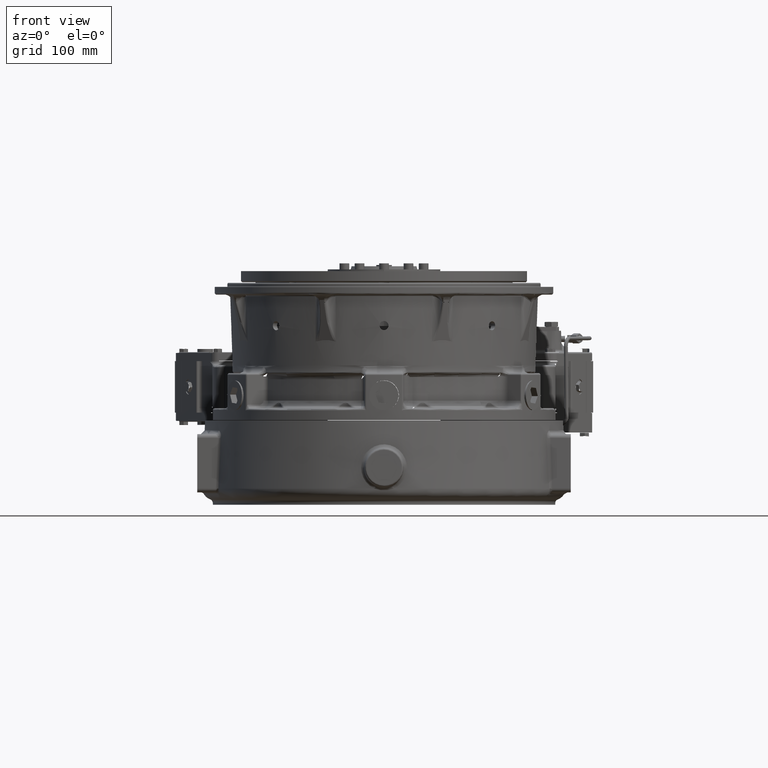
[diagram: clean part render]
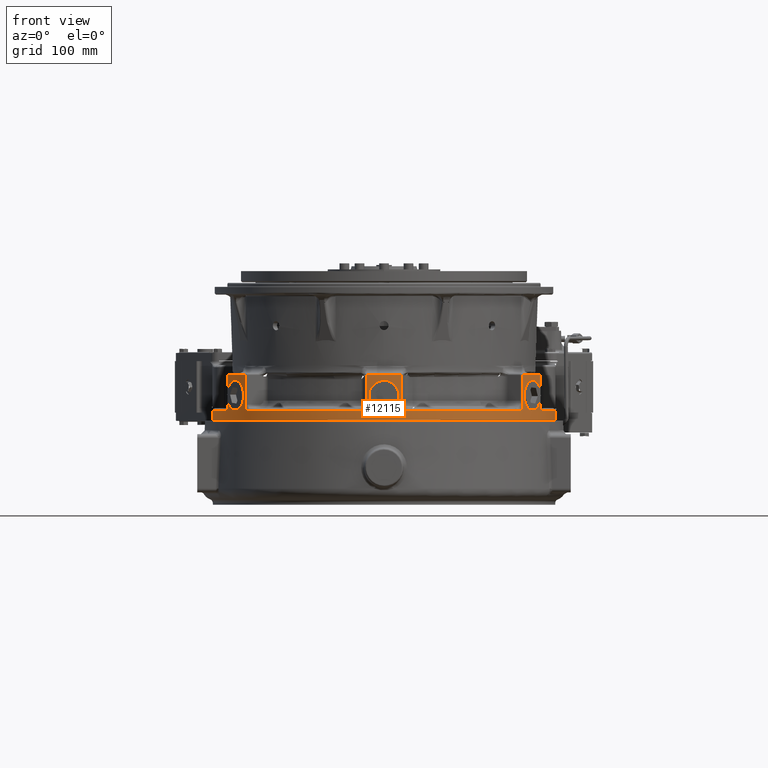
[diagram: same view with one face highlighted and labeled with its STEP entity id]
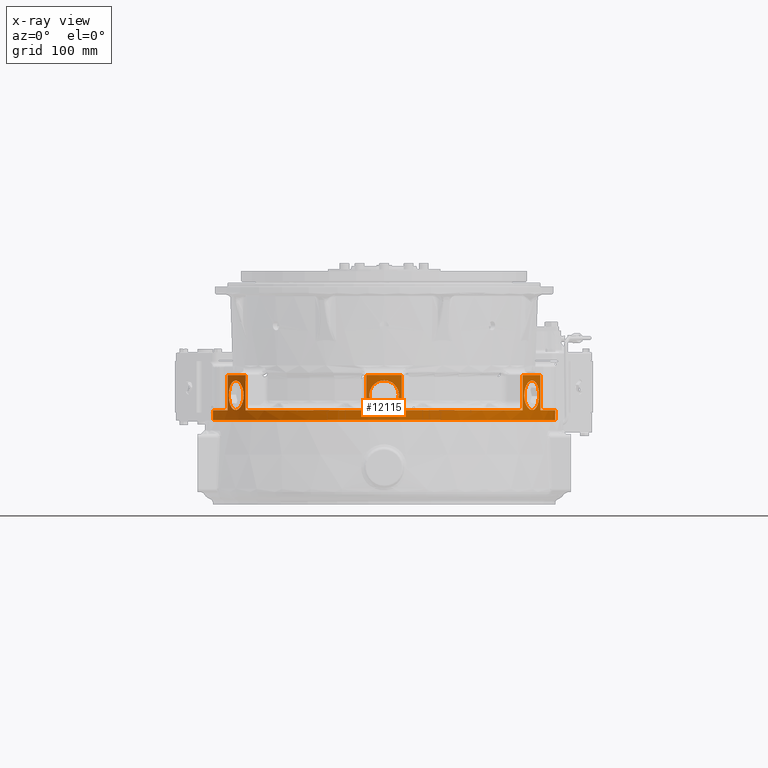
[diagram: x-ray of the same camera — body ghosted, the highlighted face saturated]
A machine part, front view. The second image highlights one B-rep face of the part: STEP entity #12115.
The next image is the same camera in x-ray: the body ghosted, the highlighted face saturated — about 0% of this face is hidden behind the body in this view.
In plain terms, the highlighted cylindrical surface (partial cylindrical patch) has radius 279.4 mm, axis along (0, 0, -1).
Its self-contained STEP definition (entity closure, byte-faithful):
#15 = CARTESIAN_POINT ( 'NONE',  ( -245.5327790735576300, -133.3347573887705600, -77.48144570945672200 ) ) ;
#646 = CARTESIAN_POINT ( 'NONE',  ( -237.9601481308272400, -146.4222298017960200, -77.87294827855303900 ) ) ;
#1266 = CARTESIAN_POINT ( 'NONE',  ( -230.3954609070318300, -158.0588422460843400, -90.63441590571139300 ) ) ;
#1894 = CARTESIAN_POINT ( 'NONE',  ( -230.5243944278738600, -157.8698529962755100, -110.9134873225762900 ) ) ;
#2246 = CARTESIAN_POINT ( 'NONE',  ( 279.3999999999994100, 3.421663156817697800E-014, -140.9700000000033200 ) ) ;
#2528 = CARTESIAN_POINT ( 'NONE',  ( -234.8173586108352700, -151.4166543265507700, -120.2546831429731100 ) ) ;
#3202 = VERTEX_POINT ( 'NONE', #78393 ) ;
#3901 = CARTESIAN_POINT ( 'NONE',  ( 21.79207183474108700, -278.5490914778080800, -89.99769574670209200 ) ) ;
#4524 = CARTESIAN_POINT ( 'NONE',  ( 23.84450928787767800, -278.3806809522215000, -103.8487555702940000 ) ) ;
#5158 = CARTESIAN_POINT ( 'NONE',  ( 14.38904509516751400, -279.0299187951586600, -119.7025938018093300 ) ) ;
#5802 = CARTESIAN_POINT ( 'NONE',  ( -3.505459371263962300, -279.3823067516929100, -124.2560245371521300 ) ) ;
#5842 = ORIENTED_EDGE ( 'NONE', *, *, #129575, .T. ) ;
#6268 = LINE ( 'NONE', #122109, #152339 ) ;
#6426 = CARTESIAN_POINT ( 'NONE',  ( -17.31828655562306500, -278.8627564784817400, -117.1096844213686800 ) ) ;
#6488 = DIRECTION ( 'NONE',  ( -1.000000000000000000, 0.0000000000000000000, 0.0000000000000000000 ) ) ;
#6617 = EDGE_CURVE ( 'NONE', #70534, #132539, #24034, .T. ) ;
#7487 = VERTEX_POINT ( 'NONE', #52579 ) ;
#7502 = CARTESIAN_POINT ( 'NONE',  ( 229.7306100509573500, -159.0229574815855600, -109.1921525812041800 ) ) ;
#8107 = CARTESIAN_POINT ( 'NONE',  ( 229.5406869526235300, -159.2967374065086100, -92.93417505873922800 ) ) ;
#8378 = ORIENTED_EDGE ( 'NONE', *, *, #103463, .T. ) ;
#8649 = EDGE_CURVE ( 'NONE', #179691, #117556, #11455, .T. ) ;
#8719 = CARTESIAN_POINT ( 'NONE',  ( 234.0594127847475600, -152.5808570231123200, -81.51120010241392300 ) ) ;
#9383 = CARTESIAN_POINT ( 'NONE',  ( 242.1375046053097200, -139.4141429097914500, -76.41037705584820100 ) ) ;
#10010 = CARTESIAN_POINT ( 'NONE',  ( 250.1089842534954900, -124.5398549434506400, -84.00264976642087300 ) ) ;
#10493 = CARTESIAN_POINT ( 'NONE',  ( -23.98512254953231000, -278.3685955070897100, -102.7047739294652500 ) ) ;
#10907 = VERTEX_POINT ( 'NONE', #25170 ) ;
#10911 = ORIENTED_EDGE ( 'NONE', *, *, #23699, .T. ) ;
#11129 = CARTESIAN_POINT ( 'NONE',  ( -20.88490298410304600, -278.6184084553501100, -88.28407089525673300 ) ) ;
#11455 = CIRCLE ( 'NONE', #122856, 279.3999999999994100 ) ;
#11603 = CARTESIAN_POINT ( 'NONE',  ( 251.3980709984646800, -121.9177635799638600, -87.70538920081331500 ) ) ;
#11775 = CARTESIAN_POINT ( 'NONE',  ( -10.35352674527000100, -279.2119656356090300, -78.48315238211260700 ) ) ;
#11939 = CARTESIAN_POINT ( 'NONE',  ( 226.1496293018871300, -164.0753033415410300, -124.9680000000000500 ) ) ;
#12115 = ADVANCED_FACE ( 'NONE', ( #68497, #102722, #29678, #141507 ), #162046, .T. ) ;
#12236 = CARTESIAN_POINT ( 'NONE',  ( 252.9917464960895200, -118.5730284460204900, -99.67868068034378800 ) ) ;
#12400 = CARTESIAN_POINT ( 'NONE',  ( 8.107973234236034400, -279.2833485652183200, -77.59291150648441300 ) ) ;
#12566 = CARTESIAN_POINT ( 'NONE',  ( -244.0939781535042500, -135.9526048115153900, -124.3956169988603800 ) ) ;
#12882 = CARTESIAN_POINT ( 'NONE',  ( 250.8549538768632500, -123.0300686678008000, -115.1799979535630300 ) ) ;
#13211 = CARTESIAN_POINT ( 'NONE',  ( -249.9446301417939100, -124.8684231624305600, -118.1688383668384600 ) ) ;
#13504 = DIRECTION ( 'NONE',  ( -1.618630747420212500E-017, -1.508887532773326900E-018, 1.000000000000000000 ) ) ;
#13506 = ORIENTED_EDGE ( 'NONE', *, *, #34559, .T. ) ;
#13510 = CARTESIAN_POINT ( 'NONE',  ( 242.6622897124898900, -138.4918304736897900, -124.6653622267836400 ) ) ;
#13850 = CARTESIAN_POINT ( 'NONE',  ( -253.1730306135700900, -118.1854177775170200, -103.7041610679923700 ) ) ;
#14087 = CARTESIAN_POINT ( 'NONE',  ( -248.2184266498687200, -128.2652434272957300, -80.07792902923752400 ) ) ;
#14151 = CARTESIAN_POINT ( 'NONE',  ( 235.2352078857088600, -150.7620325088885000, -121.1559762249237300 ) ) ;
#14495 = CARTESIAN_POINT ( 'NONE',  ( -250.4389153974153700, -123.8791194570985400, -84.03739043089021300 ) ) ;
#14708 = CARTESIAN_POINT ( 'NONE',  ( -244.8024327114027900, -134.6726064550430000, -77.06466069149067300 ) ) ;
#15152 = CARTESIAN_POINT ( 'NONE',  ( -6.938893903907228400E-015, 1.387778780781445700E-014, -124.9680000000000700 ) ) ;
#15343 = CARTESIAN_POINT ( 'NONE',  ( -237.3759445937808700, -147.3674206180639600, -78.30395337580999600 ) ) ;
#15954 = CARTESIAN_POINT ( 'NONE',  ( -229.7875826532095700, -158.9404567160982500, -93.59101774945173700 ) ) ;
#16525 = DIRECTION ( 'NONE',  ( 1.618630747420212500E-017, 1.508887532773326900E-018, -1.000000000000000000 ) ) ;
#16585 = CARTESIAN_POINT ( 'NONE',  ( -230.8280412235919500, -157.4255650471100700, -111.9789775921658900 ) ) ;
#17695 = DIRECTION ( 'NONE',  ( 1.618630747420212500E-017, 1.508887532773326900E-018, -1.000000000000000000 ) ) ;
#17886 = LINE ( 'NONE', #80387, #120585 ) ;
#18581 = CARTESIAN_POINT ( 'NONE',  ( 22.69416561695000600, -278.4769628110551000, -92.17430543594113600 ) ) ;
#18686 = B_SPLINE_CURVE_WITH_KNOTS ( 'NONE', 3,
 ( #186533, #99047, #11603, #113661, #26292, #128359, #41006, #143084, #55631, #157732, #70356, #172458, #85027, #187143, #99688, #12236, #114307, #26914, #128992, #41644, #143703, #56260, #158383, #71016, #173073, #85653, #187773, #100314, #12882, #114927, #27565, #129636, #42261, #144338, #56886, #159023, #71641, #173727, #86279, #188410, #100954, #13510, #115545, #28215, #130273, #42891, #144953, #57525, #159646, #72266, #174353, #86912, #189020, #101573, #14151, #116179, #28835, #130882, #43526, #145591, #58149, #160284 ),
 .UNSPECIFIED., .F., .F.,
 ( 4, 2, 2, 2, 2, 2, 2, 2, 2, 2, 2, 2, 2, 2, 2, 2, 2, 2, 2, 2, 2, 2, 2, 2, 2, 2, 2, 2, 2, 2, 4 ),
 ( 0.07541933285033006200, 0.08013304115347552600, 0.08131146822926187100, 0.08248989530504821600, 0.08484674945662096200, 0.08720360360819369400, 0.08838203068398005300, 0.08956045775976642600, 0.09427416606291190400, 0.09663102021448466400, 0.09780944729027105100, 0.09898787436605743800, 0.1037015826692030000, 0.1060584368207757900, 0.1084152909723485900, 0.1131289992754942500, 0.1154858534270670800, 0.1178427075786399200, 0.1201995617302127600, 0.1225564158817855900, 0.1272701241849312500, 0.1296269783365041300, 0.1319838324880769900, 0.1366975407912228400, 0.1378759678670092600, 0.1390543949427956700, 0.1414112490943686100, 0.1437681032459415500, 0.1449465303217280000, 0.1461249573975144700, 0.1508386657006601200 ),
 .UNSPECIFIED. ) ;
#19197 = CARTESIAN_POINT ( 'NONE',  ( 23.64252653651388400, -278.3979128011204700, -105.0200187065648800 ) ) ;
#19816 = CARTESIAN_POINT ( 'NONE',  ( 12.43385594873453600, -279.1239766379175100, -121.0151102302860000 ) ) ;
#20432 = CARTESIAN_POINT ( 'NONE',  ( -6.601989198480827000, -279.3230026600430200, -123.5503210205656800 ) ) ;
#21173 = CARTESIAN_POINT ( 'NONE',  ( -6.938893903907228400E-015, 1.387778780781445700E-014, -124.9680000000000700 ) ) ;
#21382 = EDGE_LOOP ( 'NONE', ( #95678, #97405 ) ) ;
#22147 = CARTESIAN_POINT ( 'NONE',  ( 229.1758094541187300, -159.8218562435650400, -106.1736577320754400 ) ) ;
#22579 = CARTESIAN_POINT ( 'NONE',  ( -6.938893903907228400E-015, 1.387778780781445700E-014, -67.47510000000008300 ) ) ;
#22601 = CIRCLE ( 'NONE', #168607, 279.3999999999994100 ) ;
#22789 = CARTESIAN_POINT ( 'NONE',  ( 229.7718089219417300, -158.9631977321125500, -91.81514972920635400 ) ) ;
#23447 = CARTESIAN_POINT ( 'NONE',  ( 234.9392555079498400, -151.2217397669838600, -80.36958108272433800 ) ) ;
#23699 = EDGE_CURVE ( 'NONE', #107349, #154305, #172107, .T. ) ;
#24034 = CIRCLE ( 'NONE', #119932, 279.3999999999994100 ) ;
#24074 = CARTESIAN_POINT ( 'NONE',  ( 243.6973677079035700, -136.6621786109416800, -76.74640612011960200 ) ) ;
#24706 = CARTESIAN_POINT ( 'NONE',  ( 250.5683438563238800, -123.6117512904769700, -85.19168479574116800 ) ) ;
#25170 = CARTESIAN_POINT ( 'NONE',  ( 226.1496293018871900, -164.0753033415410900, -67.47510000000008300 ) ) ;
#25193 = CARTESIAN_POINT ( 'NONE',  ( -24.10839233429018000, -278.3579450676741700, -100.7260249786557300 ) ) ;
#25837 = CARTESIAN_POINT ( 'NONE',  ( -20.26705025844633200, -278.6640460778052700, -87.26868454427217600 ) ) ;
#26292 = CARTESIAN_POINT ( 'NONE',  ( 251.8865630868199900, -120.9030556742486600, -89.80378304362855600 ) ) ;
#26467 = CARTESIAN_POINT ( 'NONE',  ( -7.394879607663257900, -279.3031615498327900, -77.35043580180459300 ) ) ;
#26739 = ORIENTED_EDGE ( 'NONE', *, *, #65472, .T. ) ;
#26866 = DIRECTION ( 'NONE',  ( 1.618630747420212500E-017, 1.508887532773326900E-018, -1.000000000000000000 ) ) ;
#26914 = CARTESIAN_POINT ( 'NONE',  ( 252.9015803121880600, -118.7651295806316900, -103.6011820914229800 ) ) ;
#27012 = VERTEX_POINT ( 'NONE', #153989 ) ;
#27086 = CARTESIAN_POINT ( 'NONE',  ( 11.03252667865529400, -279.1858702353269500, -78.81880859989598800 ) ) ;
#27246 = CARTESIAN_POINT ( 'NONE',  ( -245.5777924230203000, -133.2600990371671500, -123.7103070275757800 ) ) ;
#27565 = CARTESIAN_POINT ( 'NONE',  ( 249.7044250248833900, -125.3537418403764600, -118.1309109282102700 ) ) ;
#27918 = CARTESIAN_POINT ( 'NONE',  ( -250.3230992678662700, -124.1079335623024900, -117.3303449344014400 ) ) ;
#28215 = CARTESIAN_POINT ( 'NONE',  ( 241.4716521554367700, -140.5575865895731900, -124.7180103579122800 ) ) ;
#28323 = VECTOR ( 'NONE', #83847, 1000.000000000000000 ) ;
#28532 = CARTESIAN_POINT ( 'NONE',  ( -253.2539472272008500, -118.0118670454983100, -101.3286904777078400 ) ) ;
#28835 = CARTESIAN_POINT ( 'NONE',  ( 234.5240705229295800, -151.8648172331907900, -120.2779517555801900 ) ) ;
#29169 = CARTESIAN_POINT ( 'NONE',  ( -249.6629419584487000, -125.4307253052556500, -82.42877200948710500 ) ) ;
#29387 = CARTESIAN_POINT ( 'NONE',  ( -243.2928982666079500, -137.3810242322598200, -76.55545755865377100 ) ) ;
#29678 = FACE_BOUND ( 'NONE', #21382, .T. ) ;
#29841 = DIRECTION ( 'NONE',  ( -1.000000000000000000, 0.0000000000000000000, 0.0000000000000000000 ) ) ;
#30021 = CARTESIAN_POINT ( 'NONE',  ( -236.2337479433175000, -149.1979770339548000, -79.27618865148535600 ) ) ;
#30096 = EDGE_CURVE ( 'NONE', #7487, #170404, #182105, .T. ) ;
#30655 = CARTESIAN_POINT ( 'NONE',  ( -229.4582596374649800, -159.4154431167383400, -95.90264274940207700 ) ) ;
#31119 = VECTOR ( 'NONE', #104795, 1000.000000000000000 ) ;
#31284 = CARTESIAN_POINT ( 'NONE',  ( -231.2690443685614000, -156.7773768054844900, -113.3513012795248000 ) ) ;
#31637 = DIRECTION ( 'NONE',  ( 1.618630747420212500E-017, 1.508887532773326900E-018, -1.000000000000000000 ) ) ;
#33309 = CARTESIAN_POINT ( 'NONE',  ( 23.27328346917639100, -278.4290325297373600, -94.05588237038527700 ) ) ;
#33909 = CARTESIAN_POINT ( 'NONE',  ( 22.75023087009208200, -278.4729439066557000, -108.4441486055155100 ) ) ;
#34558 = CARTESIAN_POINT ( 'NONE',  ( 10.34860980863561200, -279.2091696787495000, -122.1362506501640900 ) ) ;
#34559 = EDGE_CURVE ( 'NONE', #3202, #139759, #161327, .T. ) ;
#34975 = EDGE_CURVE ( 'NONE', #139759, #102970, #37710, .T. ) ;
#35192 = CARTESIAN_POINT ( 'NONE',  ( -8.842502307913072500, -279.2609714736908600, -122.7906977020925300 ) ) ;
#35881 = DIRECTION ( 'NONE',  ( -1.000000000000000000, 0.0000000000000000000, 0.0000000000000000000 ) ) ;
#36267 = CARTESIAN_POINT ( 'NONE',  ( 231.9685912669810100, -155.7399520534534600, -115.9697473664077300 ) ) ;
#36843 = ORIENTED_EDGE ( 'NONE', *, *, #116099, .T. ) ;
#36895 = CARTESIAN_POINT ( 'NONE',  ( 228.8793917918963800, -160.2453920213788500, -102.6738244834521200 ) ) ;
#37321 = DIRECTION ( 'NONE',  ( 1.000000000000000000, 0.0000000000000000000, 0.0000000000000000000 ) ) ;
#37522 = CARTESIAN_POINT ( 'NONE',  ( 230.2164331861886500, -158.3189468222338100, -90.00676165852551900 ) ) ;
#37710 = CIRCLE ( 'NONE', #56591, 279.3999999999994100 ) ;
#38159 = CARTESIAN_POINT ( 'NONE',  ( 235.4866298009344500, -150.3679558432558800, -79.74317323421540500 ) ) ;
#38281 = EDGE_CURVE ( 'NONE', #154305, #125783, #183745, .T. ) ;
#38794 = CARTESIAN_POINT ( 'NONE',  ( 244.8188111307763100, -134.6427749682534300, -77.23494198960513300 ) ) ;
#39290 = CARTESIAN_POINT ( 'NONE',  ( -20.67653487422317900, -278.6342095497514600, -112.7496812853161900 ) ) ;
#39903 = CARTESIAN_POINT ( 'NONE',  ( -23.89260639810778400, -278.3767505475924500, -96.80324773420505800 ) ) ;
#40539 = CARTESIAN_POINT ( 'NONE',  ( -18.92205321071743600, -278.7599902622741900, -85.30321044871171000 ) ) ;
#41006 = CARTESIAN_POINT ( 'NONE',  ( 252.1051351534657700, -120.4466033363752000, -90.88142660045288300 ) ) ;
#41172 = CARTESIAN_POINT ( 'NONE',  ( -5.104382412842440400, -279.3544398570674000, -76.73436492104639200 ) ) ;
#41338 = CARTESIAN_POINT ( 'NONE',  ( -238.5774354588680200, -145.4157929411897200, -123.6958355174703900 ) ) ;
#41644 = CARTESIAN_POINT ( 'NONE',  ( 252.7576906386778700, -119.0710524375616000, -105.5526018063685400 ) ) ;
#41789 = CARTESIAN_POINT ( 'NONE',  ( 14.34796023452347100, -279.0321066027941600, -80.92686214021881600 ) ) ;
#41962 = CARTESIAN_POINT ( 'NONE',  ( -247.1282782496714400, -130.3537666723671300, -122.3797482969569800 ) ) ;
#42261 = CARTESIAN_POINT ( 'NONE',  ( 248.5837627646228000, -127.5574336933297000, -120.1322588774348200 ) ) ;
#42409 = CARTESIAN_POINT ( 'NONE',  ( -235.5459609522034700, -150.2746162167875100, -121.0944526693196900 ) ) ;
#42511 = CARTESIAN_POINT ( 'NONE',  ( -279.3999999999994100, 1.387778780781445700E-014, -124.9680000000000700 ) ) ;
#42600 = CARTESIAN_POINT ( 'NONE',  ( -251.3404639416571100, -122.0369608610374400, -114.6311064353277400 ) ) ;
#42891 = CARTESIAN_POINT ( 'NONE',  ( 239.8788515564557700, -143.2653282901739300, -124.4633564995971100 ) ) ;
#43228 = CARTESIAN_POINT ( 'NONE',  ( -253.2244274033939200, -118.0751976214395700, -98.18457220371374200 ) ) ;
#43526 = CARTESIAN_POINT ( 'NONE',  ( 234.0031635782576700, -152.6662199153730600, -119.5649191842973800 ) ) ;
#43863 = CARTESIAN_POINT ( 'NONE',  ( -249.2507122671092900, -126.2479390215457900, -81.66640936182169200 ) ) ;
#44075 = CARTESIAN_POINT ( 'NONE',  ( -242.5131109508585900, -138.7512470186607100, -76.46297664615298100 ) ) ;
#44711 = CARTESIAN_POINT ( 'NONE',  ( -234.4602845825898500, -151.9642957027797400, -81.44753241300895800 ) ) ;
#45322 = CARTESIAN_POINT ( 'NONE',  ( -229.1808791650314300, -159.8139148891742700, -99.81187799520067500 ) ) ;
#45708 = EDGE_CURVE ( 'NONE', #125783, #106263, #58756, .T. ) ;
#45943 = CARTESIAN_POINT ( 'NONE',  ( -232.0206158596240900, -155.6631102170494500, -115.2880546850552900 ) ) ;
#46486 = CARTESIAN_POINT ( 'NONE',  ( -226.1496293018858500, -164.0753033415429100, -124.9680000000000700 ) ) ;
#47761 = DIRECTION ( 'NONE',  ( 1.618630747420212500E-017, 1.508887532773326900E-018, -1.000000000000000000 ) ) ;
#47940 = CARTESIAN_POINT ( 'NONE',  ( 23.55367468920503200, -278.4054464968190800, -95.21116289567432000 ) ) ;
#48569 = CARTESIAN_POINT ( 'NONE',  ( 21.46021353986649400, -278.5748862899632700, -111.3368990408696000 ) ) ;
#49170 = CARTESIAN_POINT ( 'NONE',  ( 7.415417550427238600, -279.3054517585376900, -123.3437888145286400 ) ) ;
#49223 = VECTOR ( 'NONE', #13504, 1000.000000000000000 ) ;
#49502 = DIRECTION ( 'NONE',  ( 1.618630747420212500E-017, 1.508887532773326900E-018, -1.000000000000000000 ) ) ;
#49774 = CARTESIAN_POINT ( 'NONE',  ( -10.98907766400166600, -279.1846634533584400, -121.8197073481705200 ) ) ;
#51492 = CARTESIAN_POINT ( 'NONE',  ( 228.8369955015352800, -160.3059261161711500, -101.4887133558822100 ) ) ;
#52131 = CARTESIAN_POINT ( 'NONE',  ( 230.8584060646462900, -157.3815299186770500, -87.94143416305343000 ) ) ;
#52579 = CARTESIAN_POINT ( 'NONE',  ( -29.01856617647058600, -277.8889757026383900, -124.9680000000001000 ) ) ;
#52785 = CARTESIAN_POINT ( 'NONE',  ( 236.6006293478130000, -148.6150278804869900, -78.60847016654530300 ) ) ;
#53416 = CARTESIAN_POINT ( 'NONE',  ( 245.8946912154550000, -132.6676211936414800, -77.94612175750923200 ) ) ;
#53896 = CARTESIAN_POINT ( 'NONE',  ( -21.79323617902083000, -278.5490016104140500, -110.6600018290923400 ) ) ;
#54529 = CARTESIAN_POINT ( 'NONE',  ( -23.38252563623424500, -278.4198773109065400, -94.47707146732439300 ) ) ;
#55172 = CARTESIAN_POINT ( 'NONE',  ( -16.21467745263941000, -278.9296744624961100, -82.46160616033965600 ) ) ;
#55631 = CARTESIAN_POINT ( 'NONE',  ( 252.4181989092998300, -119.7892599981335000, -92.71264906861200900 ) ) ;
#55805 = CARTESIAN_POINT ( 'NONE',  ( -1.216412017898951300, -279.4018891039845600, -76.17806677709539500 ) ) ;
#55972 = CARTESIAN_POINT ( 'NONE',  ( -239.7729385657955600, -143.4360716739229800, -124.2719157839191000 ) ) ;
#56260 = CARTESIAN_POINT ( 'NONE',  ( 252.6404471739421900, -119.3196270664485000, -106.7129108481273900 ) ) ;
#56441 = CARTESIAN_POINT ( 'NONE',  ( 16.18989121136121100, -278.9312024918424400, -82.43869345551652800 ) ) ;
#56591 = AXIS2_PLACEMENT_3D ( 'NONE', #103964, #16525, #118536 ) ;
#56598 = CARTESIAN_POINT ( 'NONE',  ( -247.6231316221434600, -129.4112401658527200, -121.8407224097733300 ) ) ;
#56886 = CARTESIAN_POINT ( 'NONE',  ( 247.6749882270607400, -129.3133297740830300, -121.4228204823722600 ) ) ;
#57230 = CARTESIAN_POINT ( 'NONE',  ( -252.0464739925905600, -120.5697233446759500, -111.9343072799063100 ) ) ;
#57525 = CARTESIAN_POINT ( 'NONE',  ( 238.0917895331049600, -146.2080847081099400, -123.6003365643212700 ) ) ;
#57847 = CARTESIAN_POINT ( 'NONE',  ( -252.8276432255850400, -118.9229832618910900, -93.52023698507683500 ) ) ;
#58068 = VECTOR ( 'NONE', #31637, 1000.000000000000000 ) ;
#58149 = CARTESIAN_POINT ( 'NONE',  ( 232.5353649697806300, -154.8957647035017300, -117.1970879899909900 ) ) ;
#58502 = CARTESIAN_POINT ( 'NONE',  ( -248.5253828878321100, -127.6712228461800700, -80.49274582902053500 ) ) ;
#58729 = CARTESIAN_POINT ( 'NONE',  ( -241.9183992813306900, -139.7855694482553600, -76.45448467464878200 ) ) ;
#58756 = CIRCLE ( 'NONE', #79066, 279.3999999999994100 ) ;
#59126 = ORIENTED_EDGE ( 'NONE', *, *, #134730, .T. ) ;
#59340 = CARTESIAN_POINT ( 'NONE',  ( -233.4678945533881900, -153.4843831645026200, -82.99185626199553700 ) ) ;
#59858 = EDGE_CURVE ( 'NONE', #152586, #114069, #165038, .T. ) ;
#59977 = CARTESIAN_POINT ( 'NONE',  ( -229.2633572349275000, -159.6955979797190000, -102.9669310361670800 ) ) ;
#60607 = CARTESIAN_POINT ( 'NONE',  ( -232.7256848329670900, -154.6065437880779700, -116.7932505254131300 ) ) ;
#62008 = CARTESIAN_POINT ( 'NONE',  ( 19.38305275347201800, -278.7281817668800800, -85.90449420379536600 ) ) ;
#62639 = CARTESIAN_POINT ( 'NONE',  ( 23.99136672465009200, -278.3682025271322700, -97.55463228687955300 ) ) ;
#63262 = CARTESIAN_POINT ( 'NONE',  ( 20.27775683064060200, -278.6635469097077500, -113.3922657257807900 ) ) ;
#63904 = CARTESIAN_POINT ( 'NONE',  ( 3.581300869328123400, -279.3781211574498700, -124.2050925599016600 ) ) ;
#64540 = CARTESIAN_POINT ( 'NONE',  ( -12.36398401308777300, -279.1265045590428700, -121.0459555879829500 ) ) ;
#65197 = ORIENTED_EDGE ( 'NONE', *, *, #38281, .T. ) ;
#65472 = EDGE_CURVE ( 'NONE', #117556, #157443, #88128, .T. ) ;
#66223 = CARTESIAN_POINT ( 'NONE',  ( 228.8271912754344400, -160.3199193670421600, -99.89720028211371500 ) ) ;
#66849 = CARTESIAN_POINT ( 'NONE',  ( 231.3524437257255500, -156.6539562554428400, -86.62946707610765900 ) ) ;
#67221 = VECTOR ( 'NONE', #86127, 1000.000000000000000 ) ;
#67493 = CARTESIAN_POINT ( 'NONE',  ( 238.5523212013941600, -145.4569344215322800, -77.29790127946247900 ) ) ;
#68133 = CARTESIAN_POINT ( 'NONE',  ( 246.9270570938266800, -130.7359063850881900, -78.88413691030055500 ) ) ;
#68233 = EDGE_CURVE ( 'NONE', #102970, #132539, #6268, .T. ) ;
#68497 = FACE_OUTER_BOUND ( 'NONE', #134908, .T. ) ;
#68622 = CARTESIAN_POINT ( 'NONE',  ( -22.99319823822123300, -278.4528893484109600, -107.7259777028654600 ) ) ;
#69249 = CARTESIAN_POINT ( 'NONE',  ( -23.06584847526228900, -278.4462986923414300, -93.32985206408021400 ) ) ;
#69897 = CARTESIAN_POINT ( 'NONE',  ( -14.69114849770236700, -279.0136678614632000, -81.19818013513453500 ) ) ;
#70055 = CARTESIAN_POINT ( 'NONE',  ( -236.2745632935718400, -149.1325781070243000, -121.9342221956663200 ) ) ;
#70356 = CARTESIAN_POINT ( 'NONE',  ( 252.7004908468810000, -119.1924789557208000, -94.97516175373992600 ) ) ;
#70428 = AXIS2_PLACEMENT_3D ( 'NONE', #105147, #17695, #119759 ) ;
#70522 = CARTESIAN_POINT ( 'NONE',  ( 1.963385825927087300, -279.3941978447543900, -76.26728348022541600 ) ) ;
#70534 = VERTEX_POINT ( 'NONE', #116330 ) ;
#70585 = ORIENTED_EDGE ( 'NONE', *, *, #187894, .T. ) ;
#70697 = CARTESIAN_POINT ( 'NONE',  ( -241.7589513806162500, -140.0694579168870700, -124.7539112427015800 ) ) ;
#71016 = CARTESIAN_POINT ( 'NONE',  ( 252.3548282940642500, -119.9233266067840300, -108.9841048939220900 ) ) ;
#71056 = B_SPLINE_CURVE_WITH_KNOTS ( 'NONE', 3,
 ( #119628, #170017, #126608, #39290, #141314, #53896, #155978, #68622, #170670, #83288, #185437, #97920, #10493, #112561, #25193, #127250, #39903, #141967, #54529, #156616, #69249, #171326, #83900, #186063, #98587, #11129, #113193, #25837, #127892, #40539, #142607, #55172, #157241, #69897, #171958, #84540, #186693, #99218, #11775, #113828, #26467, #128539, #41172, #143237, #55805, #157921, #70522, #172604, #85200, #187324, #99856, #12400, #114476, #27086, #129161, #41789, #143872, #56441, #158546, #71177 ),
 .UNSPECIFIED., .F., .F.,
 ( 4, 2, 2, 2, 2, 2, 2, 2, 2, 2, 2, 2, 2, 2, 2, 2, 2, 2, 2, 2, 2, 2, 2, 2, 2, 2, 2, 2, 2, 4 ),
 ( 0.0000000000000000000, 0.004713688507921081700, 0.007070532761881620300, 0.009427377015842158100, 0.01414106552376323000, 0.01531948765074350600, 0.01649790977772378300, 0.01885475403168429500, 0.02356844253960531700, 0.02474686466658556500, 0.02592528679356580900, 0.02828213104752634600, 0.03063897530148688300, 0.03181739742846716900, 0.03299581955544745500, 0.03770950806336863200, 0.04006635231732920400, 0.04124477444430949000, 0.04242319657128978300, 0.04713688507921091900, 0.04949372933317149100, 0.05185057358713205500, 0.05656426209505319200, 0.05892110634901377000, 0.06127795060297434200, 0.06363479485693492000, 0.06599163911089549200, 0.07070532761881660700, 0.07306217187277719300, 0.07541901612673776500 ),
 .UNSPECIFIED. ) ;
#71177 = CARTESIAN_POINT ( 'NONE',  ( 17.31231862019920700, -278.8631270426271300, -83.54414233371042500 ) ) ;
#71196 = DIRECTION ( 'NONE',  ( 1.618630747420212500E-017, 1.508887532773326900E-018, -1.000000000000000000 ) ) ;
#71352 = CARTESIAN_POINT ( 'NONE',  ( -248.2555943340691400, -128.1951081694558600, -121.0558236185357500 ) ) ;
#71641 = CARTESIAN_POINT ( 'NONE',  ( 246.7003803053498800, -131.1633095646002700, -122.5133503844615500 ) ) ;
#71845 = CARTESIAN_POINT ( 'NONE',  ( -248.2184266498687200, -128.2652434272957300, -80.07792902923752400 ) ) ;
#71966 = CARTESIAN_POINT ( 'NONE',  ( -252.3448698570405800, -119.9435339915195200, -110.5018773166609800 ) ) ;
#72266 = CARTESIAN_POINT ( 'NONE',  ( 237.4988705334056100, -147.1692465201165900, -123.2129513544560500 ) ) ;
#72582 = CARTESIAN_POINT ( 'NONE',  ( -252.1905296466904100, -120.2680457525099200, -89.88447656047225100 ) ) ;
#72725 = CARTESIAN_POINT ( 'NONE',  ( -17.31828655562306500, -278.8627564784817400, -117.1096844213686800 ) ) ;
#72806 = CARTESIAN_POINT ( 'NONE',  ( -246.9486940191651500, -130.7015964814244700, -78.55271090760210500 ) ) ;
#72876 = EDGE_CURVE ( 'NONE', #179691, #70534, #135640, .T. ) ;
#73455 = CARTESIAN_POINT ( 'NONE',  ( -240.1302342399724500, -142.8431920007850000, -76.73115972167411800 ) ) ;
#73607 = VERTEX_POINT ( 'NONE', #127641 ) ;
#74077 = CARTESIAN_POINT ( 'NONE',  ( -232.2670721914999500, -155.2981619967735600, -85.26368257769034600 ) ) ;
#74692 = CARTESIAN_POINT ( 'NONE',  ( -229.4647301663608200, -159.4061792086812400, -105.3213892549481200 ) ) ;
#75309 = CARTESIAN_POINT ( 'NONE',  ( -233.1787044135939200, -153.9224742181375500, -117.6541239942150400 ) ) ;
#76737 = CARTESIAN_POINT ( 'NONE',  ( 20.66486749666389900, -278.6348199525055500, -87.90934448683982800 ) ) ;
#77347 = CARTESIAN_POINT ( 'NONE',  ( 24.08417494827424600, -278.3600414202288100, -101.4816831485437100 ) ) ;
#77785 = CARTESIAN_POINT ( 'NONE',  ( -226.1496293018858200, -164.0753033415429100, -140.9700000000033200 ) ) ;
#77967 = CARTESIAN_POINT ( 'NONE',  ( 17.92647051441341700, -278.8266614030091500, -116.5349420608879000 ) ) ;
#78153 = DIRECTION ( 'NONE',  ( 1.618630747420212500E-017, 1.508887532773326900E-018, -1.000000000000000000 ) ) ;
#78393 = CARTESIAN_POINT ( 'NONE',  ( -255.1681954783564900, -113.8136723610962000, -67.47510000000008300 ) ) ;
#78575 = CARTESIAN_POINT ( 'NONE',  ( 1.208405789274664900, -279.3985136668260900, -124.4428294845562800 ) ) ;
#79066 = AXIS2_PLACEMENT_3D ( 'NONE', #22579, #124695, #37321 ) ;
#79192 = CARTESIAN_POINT ( 'NONE',  ( -13.37097449530176300, -279.0800674824876600, -120.4090835633327300 ) ) ;
#80300 = CARTESIAN_POINT ( 'NONE',  ( 230.9069566650581200, -157.3114647403445200, -113.4359721062933600 ) ) ;
#80387 = CARTESIAN_POINT ( 'NONE',  ( -29.01856617647061000, -277.8889757026383900, -140.9700000000033200 ) ) ;
#80917 = CARTESIAN_POINT ( 'NONE',  ( 228.9747985840833500, -160.1090985491239600, -96.75749825421489400 ) ) ;
#81532 = CARTESIAN_POINT ( 'NONE',  ( 231.7521677845015200, -156.0620243351902200, -85.67373640658185300 ) ) ;
#82166 = CARTESIAN_POINT ( 'NONE',  ( 239.7557751937278900, -143.4647380057408300, -76.78220912124517400 ) ) ;
#82804 = CARTESIAN_POINT ( 'NONE',  ( 248.5047838042826500, -127.7154253560617000, -80.86168960879076900 ) ) ;
#82892 = CARTESIAN_POINT ( 'NONE',  ( 279.3999999999994100, 3.416118379901076000E-014, -124.9680000000000700 ) ) ;
#83132 = CARTESIAN_POINT ( 'NONE',  ( -226.1496293018858200, -164.0753033415429100, -67.47510000000008300 ) ) ;
#83288 = CARTESIAN_POINT ( 'NONE',  ( -23.77752253027391300, -278.3864121273130600, -104.2768892394802800 ) ) ;
#83557 = ORIENTED_EDGE ( 'NONE', *, *, #165459, .T. ) ;
#83847 = DIRECTION ( 'NONE',  ( 1.618630747420212500E-017, 1.508887532773326900E-018, -1.000000000000000000 ) ) ;
#83900 = CARTESIAN_POINT ( 'NONE',  ( -22.42774658190875700, -278.4985706897526800, -91.46614485843467400 ) ) ;
#84540 = CARTESIAN_POINT ( 'NONE',  ( -13.72970960603500100, -279.0626432313295600, -80.49514248438802600 ) ) ;
#84917 = CARTESIAN_POINT ( 'NONE',  ( 255.1681954783574600, -113.8136723610940100, -67.47510000000006900 ) ) ;
#85027 = CARTESIAN_POINT ( 'NONE',  ( 252.8315432920455000, -118.9141470632410500, -96.52386046420093600 ) ) ;
#85200 = CARTESIAN_POINT ( 'NONE',  ( 4.304143985538273900, -279.3679017153070800, -76.57495312408924800 ) ) ;
#85357 = CARTESIAN_POINT ( 'NONE',  ( -242.9319862583503500, -138.0165427347205300, -124.6631216572076300 ) ) ;
#85653 = CARTESIAN_POINT ( 'NONE',  ( 251.6199414716074300, -121.4574046463268400, -112.5348261445199400 ) ) ;
#85992 = CARTESIAN_POINT ( 'NONE',  ( -249.1375315553487400, -126.4723568242230300, -119.7099547648074500 ) ) ;
#86127 = DIRECTION ( 'NONE',  ( -1.618630747420212500E-017, -1.508887532773326900E-018, 1.000000000000000000 ) ) ;
#86279 = CARTESIAN_POINT ( 'NONE',  ( 245.6553602236058100, -133.1103879662271700, -123.4022738551623200 ) ) ;
#86621 = CARTESIAN_POINT ( 'NONE',  ( -252.5428134720092400, -119.5261749644975400, -109.4079789606074900 ) ) ;
#86838 = CARTESIAN_POINT ( 'NONE',  ( -247.6045141739420500, -129.4532845895271000, -79.24829542967150100 ) ) ;
#86912 = CARTESIAN_POINT ( 'NONE',  ( 236.7233242978330700, -148.4148327816103600, -122.6236827500608400 ) ) ;
#87250 = CARTESIAN_POINT ( 'NONE',  ( -251.6912484722797400, -121.3096578793567600, -87.81374854882251700 ) ) ;
#87480 = CARTESIAN_POINT ( 'NONE',  ( -245.8929622973364000, -132.6693416737547600, -77.72387526154830100 ) ) ;
#88082 = CARTESIAN_POINT ( 'NONE',  ( -238.5502068229236600, -145.4603889003537600, -77.48793146828137400 ) ) ;
#88128 = LINE ( 'NONE', #188406, #49223 ) ;
#88698 = CARTESIAN_POINT ( 'NONE',  ( -230.7882743756231000, -157.4859966286944700, -89.21988593562500100 ) ) ;
#89343 = CARTESIAN_POINT ( 'NONE',  ( -230.0605385987919400, -158.5463312792062400, -109.1086060434624600 ) ) ;
#89979 = CARTESIAN_POINT ( 'NONE',  ( -234.1327152957164200, -152.4715726501645700, -119.2913434708868700 ) ) ;
#91091 = EDGE_CURVE ( 'NONE', #114069, #152586, #104145, .T. ) ;
#91376 = CARTESIAN_POINT ( 'NONE',  ( 21.25126282203824600, -278.5906971130929700, -88.94458734242614600 ) ) ;
#91981 = CARTESIAN_POINT ( 'NONE',  ( 23.89938467917081500, -278.3759713746090900, -103.4533462439966900 ) ) ;
#92439 = DIRECTION ( 'NONE',  ( -1.618630747420212500E-017, -1.508887532773326900E-018, 1.000000000000000000 ) ) ;
#92613 = CARTESIAN_POINT ( 'NONE',  ( 15.62047525094082300, -278.9636911042696300, -118.7214956762708500 ) ) ;
#93072 = B_SPLINE_CURVE_WITH_KNOTS ( 'NONE', 3,
 ( #134716, #149394, #62008, #164084, #76737, #178848, #91376, #3901, #106008, #18581, #120670, #33309, #135315, #47940, #150009, #62639, #164717, #77347, #179476, #91981, #4524, #106637, #19197, #121293, #33909, #135958, #48569, #150621, #63262, #165345, #77967, #180096, #92613, #5158, #107266, #19816, #121905, #34558, #136589, #49170, #151237, #63904, #165976, #78575, #180736, #93240, #5802, #107882, #20432, #122552, #35192, #137210, #49774, #151879, #64540, #166594, #79192, #181376, #93874, #6426 ),
 .UNSPECIFIED., .F., .F.,
 ( 4, 2, 2, 2, 2, 2, 2, 2, 2, 2, 2, 2, 2, 2, 2, 2, 2, 2, 2, 2, 2, 2, 2, 2, 2, 2, 2, 2, 2, 4 ),
 ( 0.07541901612673776500, 0.08013270463465899100, 0.08131112676163929100, 0.08248954888861959000, 0.08484639314258013400, 0.08720323739654067800, 0.08838165952352092200, 0.08956008165050116700, 0.09427377015842212900, 0.09663061441238263200, 0.09780903653936290400, 0.09898745866634317500, 0.1037011471742643000, 0.1060579914282248800, 0.1084148356821854300, 0.1131285241901065800, 0.1154853684440671200, 0.1178422126980276900, 0.1201990569519882400, 0.1225559012059488100, 0.1272695897138699200, 0.1296264339678305200, 0.1319832782217910700, 0.1366969667297122100, 0.1390538109836727500, 0.1414106552376333500, 0.1437674994915939000, 0.1449459216185742000, 0.1461243437455544700, 0.1508380322534755300 ),
 .UNSPECIFIED. ) ;
#93240 = CARTESIAN_POINT ( 'NONE',  ( -1.943435419093486400, -279.3976766082251400, -124.4330250281015800 ) ) ;
#93874 = CARTESIAN_POINT ( 'NONE',  ( -16.21173576329746900, -278.9314768911745000, -118.2547107260076200 ) ) ;
#94932 = CARTESIAN_POINT ( 'NONE',  ( 230.0794288873025800, -158.5178557875036300, -110.6520130626744700 ) ) ;
#95557 = CARTESIAN_POINT ( 'NONE',  ( 229.4701796119618700, -159.3982733391518700, -93.31371336518141400 ) ) ;
#95678 = ORIENTED_EDGE ( 'NONE', *, *, #59858, .T. ) ;
#95822 = ORIENTED_EDGE ( 'NONE', *, *, #34975, .T. ) ;
#96183 = CARTESIAN_POINT ( 'NONE',  ( 233.0641082294525000, -154.1004478494599500, -83.01799340011045600 ) ) ;
#96810 = CARTESIAN_POINT ( 'NONE',  ( 241.3479856078841400, -140.7762579920948000, -76.42009237173377300 ) ) ;
#97405 = ORIENTED_EDGE ( 'NONE', *, *, #91091, .T. ) ;
#97460 = CARTESIAN_POINT ( 'NONE',  ( 249.6030564841384500, -125.5507613175920800, -82.88321697804411800 ) ) ;
#97847 = ORIENTED_EDGE ( 'NONE', *, *, #72876, .F. ) ;
#97920 = CARTESIAN_POINT ( 'NONE',  ( -23.94265033394197000, -278.3722547353710300, -103.1011444891803400 ) ) ;
#98587 = CARTESIAN_POINT ( 'NONE',  ( -21.45800510563685400, -278.5750542103120300, -89.31902637496544600 ) ) ;
#99047 = CARTESIAN_POINT ( 'NONE',  ( 251.0127997799341700, -122.7108127993261900, -86.40343341129522500 ) ) ;
#99218 = CARTESIAN_POINT ( 'NONE',  ( -11.74897988253222700, -279.1560083472619500, -79.20300815888084900 ) ) ;
#99688 = CARTESIAN_POINT ( 'NONE',  ( 252.9046809094990900, -118.7585114989206300, -97.70424930913412700 ) ) ;
#99749 = CARTESIAN_POINT ( 'NONE',  ( -279.3999999999994100, -5.544776916621357200E-017, -140.9700000000033500 ) ) ;
#99856 = CARTESIAN_POINT ( 'NONE',  ( 6.601159113209934800, -279.3230257499914700, -77.10939606928791100 ) ) ;
#100028 = CARTESIAN_POINT ( 'NONE',  ( -243.5159322000656600, -136.9835975443508300, -124.5538655942229700 ) ) ;
#100314 = CARTESIAN_POINT ( 'NONE',  ( 251.0600664877522700, -122.6107424787555700, -114.5447396548709100 ) ) ;
#100658 = CARTESIAN_POINT ( 'NONE',  ( -249.8145489901341100, -125.1284899158844600, -118.4375281235690700 ) ) ;
#100954 = CARTESIAN_POINT ( 'NONE',  ( 243.8217211409843200, -136.4470011605074500, -124.4194963878501500 ) ) ;
#101273 = CARTESIAN_POINT ( 'NONE',  ( -253.0103345284819900, -118.5335237095827500, -106.0446432065395900 ) ) ;
#101304 = EDGE_CURVE ( 'NONE', #10907, #107349, #140118, .T. ) ;
#101573 = CARTESIAN_POINT ( 'NONE',  ( 235.5997303252934200, -150.1919099373354200, -121.5566103759653200 ) ) ;
#101902 = CARTESIAN_POINT ( 'NONE',  ( -250.8967380117204000, -122.9473053676135000, -85.21700727229909900 ) ) ;
#102120 = CARTESIAN_POINT ( 'NONE',  ( -245.3512629884834600, -133.6684826264580900, -77.37003247521177200 ) ) ;
#102722 = FACE_BOUND ( 'NONE', #188118, .T. ) ;
#102759 = CARTESIAN_POINT ( 'NONE',  ( -237.7637564592801900, -146.7409003849409400, -78.01112292379119100 ) ) ;
#102833 = ORIENTED_EDGE ( 'NONE', *, *, #8649, .T. ) ;
#102970 = VERTEX_POINT ( 'NONE', #42511 ) ;
#103405 = CARTESIAN_POINT ( 'NONE',  ( -229.9246922426956700, -158.7421569772361400, -92.84105988796197600 ) ) ;
#103463 = EDGE_CURVE ( 'NONE', #73607, #182841, #93072, .T. ) ;
#103875 = LINE ( 'NONE', #77785, #176985 ) ;
#103964 = CARTESIAN_POINT ( 'NONE',  ( -6.938893903907228400E-015, 1.387778780781445700E-014, -124.9680000000000700 ) ) ;
#104023 = CARTESIAN_POINT ( 'NONE',  ( -230.6226859569897800, -157.7262497731619000, -111.2726255821479000 ) ) ;
#104145 = B_SPLINE_CURVE_WITH_KNOTS ( 'NONE', 3,
 ( #14087, #86838, #72806, #174907, #87480, #15, #102120, #14708, #116749, #29387, #131436, #44075, #146154, #58729, #160843, #73455, #175545, #88082, #646, #102759, #15343, #117363, #30021, #132057, #44711, #146784, #59340, #161471, #74077, #176198, #88698, #1266, #103405, #15954, #117969, #30655, #132713, #45322, #147377, #59977, #162082, #74692, #176807, #89343, #1894, #104023, #16585, #118605, #31284, #133335, #45943, #147990, #60607, #162697, #75309, #177435, #89979, #2528, #104634 ),
 .UNSPECIFIED., .F., .F.,
 ( 4, 2, 2, 2, 1, 2, 2, 2, 2, 2, 2, 2, 2, 2, 2, 2, 2, 2, 2, 2, 2, 2, 2, 2, 2, 2, 2, 2, 2, 4 ),
 ( 0.07542204948594540000, 0.08013592757881640700, 0.08131439710203419700, 0.08249286662525198700, 0.08484980567168759500, 0.08720674471812321600, 0.08838521424134109000, 0.08956368376455894900, 0.09427756185743051100, 0.09663450090386634100, 0.09781297042708425600, 0.09899143995030215700, 0.1037053180431738900, 0.1060622570896097600, 0.1084191961360456400, 0.1131330742289173900, 0.1178469523217891300, 0.1202038913682249900, 0.1225608304146608600, 0.1272747085075326100, 0.1296316475539685000, 0.1319885866004043600, 0.1367024646932761000, 0.1378809342164940000, 0.1390594037397118700, 0.1414163427861476800, 0.1437732818325834500, 0.1449517513558013500, 0.1461302208790192200, 0.1508440989718907700 ),
 .UNSPECIFIED. ) ;
#104634 = CARTESIAN_POINT ( 'NONE',  ( -235.5459609522034700, -150.2746162167875100, -121.0944526693196900 ) ) ;
#104795 = DIRECTION ( 'NONE',  ( 1.618630747420212500E-017, 1.508887532773326900E-018, -1.000000000000000000 ) ) ;
#105147 = CARTESIAN_POINT ( 'NONE',  ( -6.938893903907228400E-015, 1.387778780781445700E-014, -67.47510000000008300 ) ) ;
#106008 = CARTESIAN_POINT ( 'NONE',  ( 22.11648214823820500, -278.5234374104018100, -90.71392992761261100 ) ) ;
#106263 = VERTEX_POINT ( 'NONE', #139265 ) ;
#106637 = CARTESIAN_POINT ( 'NONE',  ( 23.71612649490420900, -278.3916476740637900, -104.6315618860177800 ) ) ;
#106819 = AXIS2_PLACEMENT_3D ( 'NONE', #136937, #49502, #151595 ) ;
#107266 = CARTESIAN_POINT ( 'NONE',  ( 13.75166089958049700, -279.0621560341377900, -120.1612149567135400 ) ) ;
#107349 = VERTEX_POINT ( 'NONE', #11939 ) ;
#107882 = CARTESIAN_POINT ( 'NONE',  ( -5.829629489512281100, -279.3402509715344900, -123.7567769462130500 ) ) ;
#109569 = CARTESIAN_POINT ( 'NONE',  ( 229.5748906633156700, -159.2475554598837800, -108.4402017976206700 ) ) ;
#110185 = CARTESIAN_POINT ( 'NONE',  ( 229.6914932324873500, -159.0792112492098600, -92.18505141678083700 ) ) ;
#110830 = CARTESIAN_POINT ( 'NONE',  ( 234.4037909466393300, -152.0514919919489200, -81.03712015612093500 ) ) ;
#111442 = CARTESIAN_POINT ( 'NONE',  ( 243.3125944275097400, -137.3461684499916100, -76.63318352189753600 ) ) ;
#112075 = CARTESIAN_POINT ( 'NONE',  ( 250.3461158945187000, -124.0622205360524100, -84.58581048796418100 ) ) ;
#112481 = AXIS2_PLACEMENT_3D ( 'NONE', #137271, #122620, #6488 ) ;
#112561 = CARTESIAN_POINT ( 'NONE',  ( -24.08281445343921900, -278.3601665490691600, -101.5157425589361800 ) ) ;
#112996 = CARTESIAN_POINT ( 'NONE',  ( -255.1681954783564900, -113.8136723610961700, -124.9680000000000700 ) ) ;
#113193 = CARTESIAN_POINT ( 'NONE',  ( -20.68498250201981400, -278.6333350507845200, -87.94297245539941300 ) ) ;
#113661 = CARTESIAN_POINT ( 'NONE',  ( 251.8079956633495400, -121.0666304917947800, -89.44834683621411400 ) ) ;
#113828 = CARTESIAN_POINT ( 'NONE',  ( -8.151493863634391000, -279.2820303301526800, -77.60857052234303000 ) ) ;
#113996 = CARTESIAN_POINT ( 'NONE',  ( -237.0269614006080600, -147.9349374835222800, -122.6272399883836400 ) ) ;
#114069 = VERTEX_POINT ( 'NONE', #71845 ) ;
#114249 = CARTESIAN_POINT ( 'NONE',  ( 0.0000000000000000000, 0.0000000000000000000, -140.9700000000033500 ) ) ;
#114307 = CARTESIAN_POINT ( 'NONE',  ( 252.9946167319690500, -118.5668807866272700, -101.2515662244783100 ) ) ;
#114476 = CARTESIAN_POINT ( 'NONE',  ( 8.856592665653645100, -279.2605368868781900, -77.87468255741706000 ) ) ;
#114642 = CARTESIAN_POINT ( 'NONE',  ( -244.4709310956492100, -135.2734651767153200, -124.2519956386043700 ) ) ;
#114927 = CARTESIAN_POINT ( 'NONE',  ( 250.1978128250931700, -124.3639705920021300, -117.0104002627121500 ) ) ;
#115252 = CARTESIAN_POINT ( 'NONE',  ( -250.1988751551469900, -124.3582088600875900, -117.6153691795998000 ) ) ;
#115545 = CARTESIAN_POINT ( 'NONE',  ( 242.2688166340835500, -139.1790732448035300, -124.7092635026440100 ) ) ;
#115884 = CARTESIAN_POINT ( 'NONE',  ( -253.2112751167288700, -118.1033983570431300, -102.9092269874976200 ) ) ;
#116099 = EDGE_CURVE ( 'NONE', #171017, #3202, #185941, .T. ) ;
#116179 = CARTESIAN_POINT ( 'NONE',  ( 234.7003597939753400, -151.5922474316852500, -120.5038643440387500 ) ) ;
#116330 = CARTESIAN_POINT ( 'NONE',  ( 279.3999999999994100, 3.416118379901076000E-014, -140.9700000000033500 ) ) ;
#116515 = CARTESIAN_POINT ( 'NONE',  ( -249.7952711748646700, -125.1669501510154600, -82.69146825536434200 ) ) ;
#116749 = CARTESIAN_POINT ( 'NONE',  ( -244.0592506148172400, -136.0192803321043300, -76.73434258667830900 ) ) ;
#117176 = DIRECTION ( 'NONE',  ( 1.618630747420212500E-017, 1.508887532773326900E-018, -1.000000000000000000 ) ) ;
#117363 = CARTESIAN_POINT ( 'NONE',  ( -237.1839670679877700, -147.6761812786328700, -78.45895532884573200 ) ) ;
#117556 = VERTEX_POINT ( 'NONE', #128984 ) ;
#117969 = CARTESIAN_POINT ( 'NONE',  ( -229.5543859188695400, -159.2770725124562100, -95.12042163553439900 ) ) ;
#118536 = DIRECTION ( 'NONE',  ( -1.000000000000000000, 0.0000000000000000000, 0.0000000000000000000 ) ) ;
#118605 = CARTESIAN_POINT ( 'NONE',  ( -230.9351004760700900, -157.2684919441790000, -112.3263376759748800 ) ) ;
#119628 = CARTESIAN_POINT ( 'NONE',  ( -17.31828655562306500, -278.8627564784817400, -117.1096844213686800 ) ) ;
#119759 = DIRECTION ( 'NONE',  ( 1.000000000000000000, 0.0000000000000000000, 0.0000000000000000000 ) ) ;
#119932 = AXIS2_PLACEMENT_3D ( 'NONE', #114249, #26866, #128927 ) ;
#120585 = VECTOR ( 'NONE', #47761, 1000.000000000000000 ) ;
#120670 = CARTESIAN_POINT ( 'NONE',  ( 22.94743832162074400, -278.4561412323398600, -92.91844690670950500 ) ) ;
#121293 = CARTESIAN_POINT ( 'NONE',  ( 23.22828334966707700, -278.4329676267391800, -106.9478243319144500 ) ) ;
#121905 = CARTESIAN_POINT ( 'NONE',  ( 11.75343663125474300, -279.1535614765163000, -121.4103863677343500 ) ) ;
#122109 = CARTESIAN_POINT ( 'NONE',  ( -279.3999999999994100, 0.0000000000000000000, -140.9700000000033200 ) ) ;
#122552 = CARTESIAN_POINT ( 'NONE',  ( -8.106228836773782500, -279.2833957299379800, -123.0676647835201600 ) ) ;
#122620 = DIRECTION ( 'NONE',  ( 1.618630747420212500E-017, 1.508887532773326900E-018, -1.000000000000000000 ) ) ;
#122856 = AXIS2_PLACEMENT_3D ( 'NONE', #15152, #117176, #29841 ) ;
#123266 = DIRECTION ( 'NONE',  ( 1.618630747420212500E-017, 1.508887532773326900E-018, -1.000000000000000000 ) ) ;
#123584 = ORIENTED_EDGE ( 'NONE', *, *, #148553, .T. ) ;
#124012 = EDGE_LOOP ( 'NONE', ( #59126, #8378 ) ) ;
#124267 = CARTESIAN_POINT ( 'NONE',  ( 228.9958922042868600, -160.0789423109351600, -104.6339721064708100 ) ) ;
#124695 = DIRECTION ( 'NONE',  ( 1.618630747420212500E-017, 1.508887532773326900E-018, -1.000000000000000000 ) ) ;
#124898 = CARTESIAN_POINT ( 'NONE',  ( 230.0271149457958300, -158.5937452222960600, -90.71916225812377400 ) ) ;
#125507 = CARTESIAN_POINT ( 'NONE',  ( 235.1209885198063300, -150.9390463629303000, -80.15432091729267900 ) ) ;
#125783 = VERTEX_POINT ( 'NONE', #135683 ) ;
#126148 = CARTESIAN_POINT ( 'NONE',  ( 244.4501738126797100, -135.3110143831641500, -77.04722536769034500 ) ) ;
#126608 = CARTESIAN_POINT ( 'NONE',  ( -19.40066836687225700, -278.7269297541927200, -114.7301940589817800 ) ) ;
#126796 = CARTESIAN_POINT ( 'NONE',  ( -235.5459609522034700, -150.2746162167875100, -121.0944526693196900 ) ) ;
#127250 = CARTESIAN_POINT ( 'NONE',  ( -24.07020521018769800, -278.3612506691790700, -98.36550279513903700 ) ) ;
#127380 = ORIENTED_EDGE ( 'NONE', *, *, #6617, .F. ) ;
#127641 = CARTESIAN_POINT ( 'NONE',  ( 17.31231862019920700, -278.8631270426271300, -83.54414233371042500 ) ) ;
#127892 = CARTESIAN_POINT ( 'NONE',  ( -20.04855206583711100, -278.6798639601700500, -86.93486646155287200 ) ) ;
#128359 = CARTESIAN_POINT ( 'NONE',  ( 252.0351062783472600, -120.5930957323976300, -90.52028540766845300 ) ) ;
#128539 = CARTESIAN_POINT ( 'NONE',  ( -5.871765612829436900, -279.3393324699044900, -76.91378244697378400 ) ) ;
#128695 = CARTESIAN_POINT ( 'NONE',  ( -238.1859727833595500, -146.0559615661380200, -123.4553149751446000 ) ) ;
#128927 = DIRECTION ( 'NONE',  ( -1.000000000000000000, 0.0000000000000000000, 0.0000000000000000000 ) ) ;
#128984 = CARTESIAN_POINT ( 'NONE',  ( 255.1681954783574600, -113.8136723610940100, -124.9680000000000300 ) ) ;
#128992 = CARTESIAN_POINT ( 'NONE',  ( 252.8542072030780000, -118.8660284608201000, -104.3827570505763000 ) ) ;
#129161 = CARTESIAN_POINT ( 'NONE',  ( 12.40497187218679700, -279.1274952153394200, -79.58244452579285200 ) ) ;
#129336 = CARTESIAN_POINT ( 'NONE',  ( -246.2838515682563500, -131.9496525112689900, -123.2024707531865300 ) ) ;
#129575 = EDGE_CURVE ( 'NONE', #106263, #7487, #17886, .T. ) ;
#129636 = CARTESIAN_POINT ( 'NONE',  ( 248.8728836436354200, -126.9922159208945800, -119.6563571225544800 ) ) ;
#129967 = CARTESIAN_POINT ( 'NONE',  ( -250.9228209318207200, -122.8953584901407400, -115.8806492223537800 ) ) ;
#130273 = CARTESIAN_POINT ( 'NONE',  ( 241.0732756251272800, -141.2396906252099300, -124.6829396145207600 ) ) ;
#130588 = CARTESIAN_POINT ( 'NONE',  ( -253.2587091801162300, -118.0016396335268400, -100.5408678514417600 ) ) ;
#130882 = CARTESIAN_POINT ( 'NONE',  ( 234.1756453999228100, -152.4015402462983100, -119.8087514803407000 ) ) ;
#131209 = CARTESIAN_POINT ( 'NONE',  ( -249.3908568245965700, -125.9708377770182300, -81.91656369929451400 ) ) ;
#131436 = CARTESIAN_POINT ( 'NONE',  ( -242.7091783080370500, -138.4079831749416500, -76.47888516203445900 ) ) ;
#132057 = CARTESIAN_POINT ( 'NONE',  ( -235.5041716948005900, -150.3455818250422200, -80.06387830663608400 ) ) ;
#132539 = VERTEX_POINT ( 'NONE', #99749 ) ;
#132713 = CARTESIAN_POINT ( 'NONE',  ( -229.2387781947641900, -159.7310497417887800, -98.24376176883569700 ) ) ;
#133335 = CARTESIAN_POINT ( 'NONE',  ( -231.5086665811433600, -156.4234872522202400, -114.0118287311734700 ) ) ;
#134716 = CARTESIAN_POINT ( 'NONE',  ( 17.31231862019920700, -278.8631270426271300, -83.54414233371042500 ) ) ;
#134730 = EDGE_CURVE ( 'NONE', #182841, #73607, #71056, .T. ) ;
#134908 = EDGE_LOOP ( 'NONE', ( #97847, #102833, #26739, #158644, #175349, #10911, #65197, #182235, #5842, #150085, #123584, #36843, #13506, #95822, #134958, #127380 ) ) ;
#134958 = ORIENTED_EDGE ( 'NONE', *, *, #68233, .T. ) ;
#135315 = CARTESIAN_POINT ( 'NONE',  ( 23.37287186176299500, -278.4206836630348200, -94.43857098238658000 ) ) ;
#135640 = LINE ( 'NONE', #2246, #58068 ) ;
#135683 = CARTESIAN_POINT ( 'NONE',  ( 29.01856617647058600, -277.8889757026383300, -67.47510000000006900 ) ) ;
#135958 = CARTESIAN_POINT ( 'NONE',  ( 21.81225070448465800, -278.5474539326737600, -110.6195551611906200 ) ) ;
#136589 = CARTESIAN_POINT ( 'NONE',  ( 9.620780277477340500, -279.2352798926458500, -122.4678668078356300 ) ) ;
#136772 = AXIS2_PLACEMENT_3D ( 'NONE', #21173, #123266, #35881 ) ;
#136937 = CARTESIAN_POINT ( 'NONE',  ( -6.938893903907228400E-015, 1.387778780781445700E-014, -124.9680000000000700 ) ) ;
#137210 = CARTESIAN_POINT ( 'NONE',  ( -10.28392695866578600, -279.2116059224686600, -122.1667194751570200 ) ) ;
#137271 = CARTESIAN_POINT ( 'NONE',  ( 6.938893903907228400E-015, 0.0000000000000000000, -140.9700000000033200 ) ) ;
#138925 = CARTESIAN_POINT ( 'NONE',  ( 228.8615539883481600, -160.2708631166981400, -102.2800020360998400 ) ) ;
#139052 = CARTESIAN_POINT ( 'NONE',  ( 231.9685912669810100, -155.7399520534534600, -115.9697473664077300 ) ) ;
#139265 = CARTESIAN_POINT ( 'NONE',  ( -29.01856617647061000, -277.8889757026383300, -67.47510000000006900 ) ) ;
#139565 = CARTESIAN_POINT ( 'NONE',  ( 230.6320781363109500, -157.7128389396333700, -88.61789752930326400 ) ) ;
#139759 = VERTEX_POINT ( 'NONE', #112996 ) ;
#140118 = LINE ( 'NONE', #154620, #28323 ) ;
#140197 = CARTESIAN_POINT ( 'NONE',  ( 235.6710348180338000, -150.0787913656624000, -79.54664267895111600 ) ) ;
#140827 = CARTESIAN_POINT ( 'NONE',  ( 245.5410700273096200, -133.3210788453282000, -77.68439135620765500 ) ) ;
#141314 = CARTESIAN_POINT ( 'NONE',  ( -21.07027579201058700, -278.6046211378438800, -112.0678807880760700 ) ) ;
#141507 = FACE_BOUND ( 'NONE', #124012, .T. ) ;
#141967 = CARTESIAN_POINT ( 'NONE',  ( -23.47597853252687700, -278.4120066103665200, -94.86503921563397100 ) ) ;
#142607 = CARTESIAN_POINT ( 'NONE',  ( -17.90618280483979800, -278.8279126270348300, -84.10439537189921600 ) ) ;
#143084 = CARTESIAN_POINT ( 'NONE',  ( 252.3028504487698200, -120.0321846818433200, -91.97336235836489500 ) ) ;
#143237 = CARTESIAN_POINT ( 'NONE',  ( -2.785159240024523500, -279.3903971841165200, -76.31008128156716500 ) ) ;
#143399 = CARTESIAN_POINT ( 'NONE',  ( -239.3703691874961000, -144.1068072711590800, -124.1041747229827300 ) ) ;
#143524 = CARTESIAN_POINT ( 'NONE',  ( 29.01856617647061000, -277.8889757026383300, -140.9700000000033000 ) ) ;
#143703 = CARTESIAN_POINT ( 'NONE',  ( 252.7211990231704700, -119.1484977488885700, -105.9425208664673500 ) ) ;
#143872 = CARTESIAN_POINT ( 'NONE',  ( 14.97802456905920600, -278.9989015766720400, -81.40995830874300100 ) ) ;
#144038 = CARTESIAN_POINT ( 'NONE',  ( -247.2956211480597800, -130.0359956189696200, -122.2052590872136500 ) ) ;
#144338 = CARTESIAN_POINT ( 'NONE',  ( 247.9850965552052200, -128.7174342781584900, -121.0149745022204400 ) ) ;
#144653 = CARTESIAN_POINT ( 'NONE',  ( -251.8808210101067300, -120.9156076150872800, -112.6250881563248400 ) ) ;
#144953 = CARTESIAN_POINT ( 'NONE',  ( 239.0834211231685900, -144.5883334764238800, -124.1655508662016300 ) ) ;
#145305 = CARTESIAN_POINT ( 'NONE',  ( -253.1373809990741700, -118.2622487011019000, -96.62320142981218400 ) ) ;
#145591 = CARTESIAN_POINT ( 'NONE',  ( 233.1584800305186300, -153.9578107014150400, -118.3116883833263600 ) ) ;
#145926 = CARTESIAN_POINT ( 'NONE',  ( -248.8217937379952200, -127.0923823539577600, -80.94131663736546000 ) ) ;
#146154 = CARTESIAN_POINT ( 'NONE',  ( -242.1179251038155100, -139.4396926119677600, -76.45074077054253800 ) ) ;
#146784 = CARTESIAN_POINT ( 'NONE',  ( -234.1191509416287300, -152.4891367440666300, -81.94561302548852700 ) ) ;
#147377 = CARTESIAN_POINT ( 'NONE',  ( -229.2259994207331900, -159.7491842900332400, -102.1750007225852400 ) ) ;
#147563 = B_SPLINE_CURVE_WITH_KNOTS ( 'NONE', 3,
 ( #36267, #152957, #80300, #182436, #94932, #7502, #109569, #22147, #124267, #36895, #138925, #51492, #153592, #66223, #168297, #80917, #183071, #95557, #8107, #110185, #22789, #124898, #37522, #139565, #52131, #154211, #66849, #168915, #81532, #183685, #96183, #8719, #110830, #23447, #125507, #38159, #140197, #52785, #154850, #67493, #169540, #82166, #184312, #96810, #9383, #111442, #24074, #126148, #38794, #140827, #53416, #155492, #68133, #170179, #82804, #184948, #97460, #10010, #112075, #24706 ),
 .UNSPECIFIED., .F., .F.,
 ( 4, 2, 2, 2, 2, 2, 2, 2, 2, 2, 2, 2, 2, 2, 2, 2, 2, 2, 2, 2, 2, 2, 2, 2, 2, 2, 2, 2, 2, 4 ),
 ( 0.0000000000000000000, 0.004713708303145484000, 0.007070562454718261200, 0.009427416606291037400, 0.01414112490943657100, 0.01531955198522298500, 0.01649797906100939800, 0.01885483321258227300, 0.02356854151572802500, 0.02474696859151444600, 0.02592539566730086800, 0.02828224981887374900, 0.03063910397044663000, 0.03181753104623306900, 0.03299595812201951100, 0.03770966642516531500, 0.04006652057673818600, 0.04124494765252459400, 0.04242337472831100200, 0.04713708303145663200, 0.04949393718302944100, 0.05185079133460223500, 0.05656449963774783800, 0.05892135378932061200, 0.06127820794089339200, 0.06363506209246616600, 0.06599191624403894000, 0.07070562454718444500, 0.07306247869875726100, 0.07541933285033006200 ),
 .UNSPECIFIED. ) ;
#147990 = CARTESIAN_POINT ( 'NONE',  ( -232.2929443467670900, -155.2566232370917900, -115.9037529152302000 ) ) ;
#148553 = EDGE_CURVE ( 'NONE', #170404, #171017, #103875, .T. ) ;
#149394 = CARTESIAN_POINT ( 'NONE',  ( 18.40558748047644100, -278.7952549684401300, -84.67461913625285800 ) ) ;
#150009 = CARTESIAN_POINT ( 'NONE',  ( 23.63502633592151300, -278.3985464151509200, -95.60201443061198700 ) ) ;
#150085 = ORIENTED_EDGE ( 'NONE', *, *, #30096, .T. ) ;
#150621 = CARTESIAN_POINT ( 'NONE',  ( 20.69289548811203600, -278.6329343651978500, -112.7227584825105600 ) ) ;
#151237 = CARTESIAN_POINT ( 'NONE',  ( 5.905384183842242500, -279.3418830522477400, -123.7774148128215900 ) ) ;
#151595 = DIRECTION ( 'NONE',  ( -1.000000000000000000, 0.0000000000000000000, 0.0000000000000000000 ) ) ;
#151879 = CARTESIAN_POINT ( 'NONE',  ( -12.02321165785162200, -279.1414003964619600, -121.2460479939558700 ) ) ;
#152339 = VECTOR ( 'NONE', #78153, 1000.000000000000000 ) ;
#152586 = VERTEX_POINT ( 'NONE', #42409 ) ;
#152957 = CARTESIAN_POINT ( 'NONE',  ( 231.4018175641812700, -156.5841394034052300, -114.7424067428244100 ) ) ;
#153592 = CARTESIAN_POINT ( 'NONE',  ( 228.8302777057152800, -160.3155139353013400, -101.0901979538249800 ) ) ;
#153989 = CARTESIAN_POINT ( 'NONE',  ( 250.5683438563238800, -123.6117512904769700, -85.19168479574116800 ) ) ;
#154211 = CARTESIAN_POINT ( 'NONE',  ( 231.2254807996462500, -156.8412714547268900, -86.95404016234906000 ) ) ;
#154305 = VERTEX_POINT ( 'NONE', #174820 ) ;
#154620 = CARTESIAN_POINT ( 'NONE',  ( 226.1496293018871600, -164.0753033415411400, -140.9700000000033200 ) ) ;
#154850 = CARTESIAN_POINT ( 'NONE',  ( 237.3682509692673600, -147.3870832852193800, -77.99899310683636600 ) ) ;
#155492 = CARTESIAN_POINT ( 'NONE',  ( 246.5871413496586500, -131.3760960073291000, -78.54515598494616300 ) ) ;
#155978 = CARTESIAN_POINT ( 'NONE',  ( -22.12297607156638100, -278.5229229662467100, -109.9314995401843600 ) ) ;
#156616 = CARTESIAN_POINT ( 'NONE',  ( -23.17745540117500300, -278.4370236661710000, -93.70960841427042000 ) ) ;
#157241 = CARTESIAN_POINT ( 'NONE',  ( -15.62269038704905100, -278.9635788697605100, -81.94010278485264100 ) ) ;
#157443 = VERTEX_POINT ( 'NONE', #84917 ) ;
#157732 = CARTESIAN_POINT ( 'NONE',  ( 252.6170195858520300, -119.3694071656405700, -94.21354871231679300 ) ) ;
#157921 = CARTESIAN_POINT ( 'NONE',  ( 1.171976370048107000, -279.3986762578806000, -76.21536885315327900 ) ) ;
#158079 = CARTESIAN_POINT ( 'NONE',  ( -240.9689316408832300, -141.4240746363452700, -124.6541264338887800 ) ) ;
#158383 = CARTESIAN_POINT ( 'NONE',  ( 252.5961109668255100, -119.4134726535081800, -107.0944430564261700 ) ) ;
#158546 = CARTESIAN_POINT ( 'NONE',  ( 16.76568419006060000, -278.8970630797206200, -82.97890393243919500 ) ) ;
#158562 = CARTESIAN_POINT ( 'NONE',  ( -6.938893903907228400E-015, 1.387778780781445700E-014, -67.47510000000008300 ) ) ;
#158644 = ORIENTED_EDGE ( 'NONE', *, *, #164316, .T. ) ;
#158721 = CARTESIAN_POINT ( 'NONE',  ( -247.7836193738220600, -129.1036577297240100, -121.6504170740210900 ) ) ;
#159023 = CARTESIAN_POINT ( 'NONE',  ( 247.0326291869204700, -130.5362676329182500, -122.1720073419599800 ) ) ;
#159339 = CARTESIAN_POINT ( 'NONE',  ( -252.2731132852818000, -120.0944092088739100, -110.8638786347145400 ) ) ;
#159646 = CARTESIAN_POINT ( 'NONE',  ( 237.8930653556649900, -146.5311914973310900, -123.4771854487000100 ) ) ;
#159981 = CARTESIAN_POINT ( 'NONE',  ( -252.6100792294095900, -119.3856447071278100, -92.03037497565010500 ) ) ;
#160284 = CARTESIAN_POINT ( 'NONE',  ( 231.9685912669810100, -155.7399520534534600, -115.9697473664077300 ) ) ;
#160627 = CARTESIAN_POINT ( 'NONE',  ( -248.2184266498687200, -128.2652434272957300, -80.07792902923752400 ) ) ;
#160843 = CARTESIAN_POINT ( 'NONE',  ( -240.9237133562704400, -141.5013842040399900, -76.52225333430818900 ) ) ;
#161327 = LINE ( 'NONE', #177593, #31119 ) ;
#161471 = CARTESIAN_POINT ( 'NONE',  ( -233.1567609650402900, -153.9563990300101800, -83.54084810973250800 ) ) ;
#162046 = CYLINDRICAL_SURFACE ( 'NONE', #112481, 279.3999999999994100 ) ;
#162082 = CARTESIAN_POINT ( 'NONE',  ( -229.3831021925624300, -159.5235512808265200, -104.5441648588444500 ) ) ;
#162697 = CARTESIAN_POINT ( 'NONE',  ( -232.8739798364125600, -154.3831136380711700, -117.0840646768362300 ) ) ;
#164084 = CARTESIAN_POINT ( 'NONE',  ( 20.45699863334031200, -278.6501706167340400, -87.56904026188073000 ) ) ;
#164316 = EDGE_CURVE ( 'NONE', #157443, #10907, #22601, .T. ) ;
#164717 = CARTESIAN_POINT ( 'NONE',  ( 24.11984237026087300, -278.3569538805829200, -99.12223694714086300 ) ) ;
#165038 = B_SPLINE_CURVE_WITH_KNOTS ( 'NONE', 3,
 ( #126796, #70055, #113996, #128695, #41338, #143399, #55972, #158079, #70697, #172779, #85357, #187480, #100028, #12566, #114642, #27246, #129336, #41962, #144038, #56598, #158721, #71352, #173414, #85992, #188104, #100658, #13211, #115252, #27918, #129967, #42600, #144653, #57230, #159339, #71966, #174052, #86621, #188742, #101273, #13850, #115884, #28532, #130588, #43228, #145305, #57847, #159981, #72582, #174681, #87250, #189351, #101902, #14495, #116515, #29169, #131209, #43863, #145926, #58502, #160627 ),
 .UNSPECIFIED., .F., .F.,
 ( 4, 2, 2, 2, 2, 2, 2, 2, 2, 2, 2, 2, 2, 2, 2, 2, 2, 2, 2, 2, 2, 2, 2, 2, 2, 2, 2, 2, 2, 4 ),
 ( 0.0000000000000000000, 0.004713878092871594400, 0.007070817139307358300, 0.009427756185743122900, 0.01414163427861464900, 0.01532010380183254800, 0.01649857332505044700, 0.01885551237148629100, 0.02356939046435792600, 0.02474785998757577900, 0.02592632951079363800, 0.02828326855722940900, 0.03064020760366518000, 0.03181867712688307000, 0.03299714665010095000, 0.03771102474297246400, 0.04006796378940821100, 0.04124643331262611200, 0.04242490283584401300, 0.04713878092871567200, 0.04949571997515150200, 0.05185265902158733800, 0.05656653711445894900, 0.06128041520733056700, 0.06363735425376637600, 0.06599429330020217800, 0.07070817139307379600, 0.07188664091629171100, 0.07306511043950962600, 0.07542204948594540000 ),
 .UNSPECIFIED. ) ;
#165345 = CARTESIAN_POINT ( 'NONE',  ( 18.94017475349913600, -278.7587289643751700, -115.3322773878325900 ) ) ;
#165459 = EDGE_CURVE ( 'NONE', #178890, #27012, #147563, .T. ) ;
#165976 = CARTESIAN_POINT ( 'NONE',  ( 2.795417392216810600, -279.3871423766429400, -124.3103669882308100 ) ) ;
#166594 = CARTESIAN_POINT ( 'NONE',  ( -13.03752150351013500, -279.0958557217765600, -120.6277259537962300 ) ) ;
#168297 = CARTESIAN_POINT ( 'NONE',  ( 228.8477164470417900, -160.2906364488666800, -99.10789633311638600 ) ) ;
#168607 = AXIS2_PLACEMENT_3D ( 'NONE', #158562, #71196, #173266 ) ;
#168915 = CARTESIAN_POINT ( 'NONE',  ( 231.6156437153397300, -156.2645475297452700, -85.98959750251262300 ) ) ;
#169540 = CARTESIAN_POINT ( 'NONE',  ( 238.9547604710930400, -144.7949765634285500, -77.09927002037987600 ) ) ;
#170017 = CARTESIAN_POINT ( 'NONE',  ( -18.42483734794867100, -278.7940360657889300, -115.9646581167297900 ) ) ;
#170179 = CARTESIAN_POINT ( 'NONE',  ( 247.9037772116671200, -128.8799139415562500, -79.99403172184757700 ) ) ;
#170404 = VERTEX_POINT ( 'NONE', #46486 ) ;
#170670 = CARTESIAN_POINT ( 'NONE',  ( -23.42402044808191900, -278.4165149964825900, -106.2152900084878800 ) ) ;
#171017 = VERTEX_POINT ( 'NONE', #83132 ) ;
#171326 = CARTESIAN_POINT ( 'NONE',  ( -22.70431750383458800, -278.4760895518314200, -92.20228372674881700 ) ) ;
#171958 = CARTESIAN_POINT ( 'NONE',  ( -14.37317104632952800, -279.0302415997150500, -80.95755426412459600 ) ) ;
#172107 = CIRCLE ( 'NONE', #136772, 279.3999999999994100 ) ;
#172458 = CARTESIAN_POINT ( 'NONE',  ( 252.8017764667419000, -118.9774268242734200, -96.13455974133695700 ) ) ;
#172604 = CARTESIAN_POINT ( 'NONE',  ( 3.528779107733878400, -279.3788116361440600, -76.44706265974196000 ) ) ;
#172779 = CARTESIAN_POINT ( 'NONE',  ( -242.7368785634049000, -138.3593979863897200, -124.6863381908649300 ) ) ;
#173073 = CARTESIAN_POINT ( 'NONE',  ( 252.0997202090804600, -120.4600989078582200, -110.4387487062309700 ) ) ;
#173266 = DIRECTION ( 'NONE',  ( 1.000000000000000000, 0.0000000000000000000, 0.0000000000000000000 ) ) ;
#173414 = CARTESIAN_POINT ( 'NONE',  ( -248.5576138540927500, -127.6083040610039300, -120.6279143170440000 ) ) ;
#173727 = CARTESIAN_POINT ( 'NONE',  ( 246.0125877467441700, -132.4488508402166400, -123.1281087836970700 ) ) ;
#174052 = CARTESIAN_POINT ( 'NONE',  ( -252.4796179612247600, -119.6596306349618700, -109.7743975722059100 ) ) ;
#174353 = CARTESIAN_POINT ( 'NONE',  ( 237.3036084874313200, -147.4838672970582300, -123.0720753050532600 ) ) ;
#174681 = CARTESIAN_POINT ( 'NONE',  ( -252.0350168404225700, -120.5938138487599800, -89.18408053514041000 ) ) ;
#174820 = CARTESIAN_POINT ( 'NONE',  ( 29.01856617647061000, -277.8889757026383300, -124.9680000000001000 ) ) ;
#174907 = CARTESIAN_POINT ( 'NONE',  ( -246.0717417268661200, -132.3374313017349900, -77.85505315981524200 ) ) ;
#175349 = ORIENTED_EDGE ( 'NONE', *, *, #101304, .T. ) ;
#175545 = CARTESIAN_POINT ( 'NONE',  ( -238.9446208425746100, -144.8116531729311600, -77.27031080052221100 ) ) ;
#176198 = CARTESIAN_POINT ( 'NONE',  ( -231.7317858224472800, -156.0943501954842200, -86.51263514969494400 ) ) ;
#176807 = CARTESIAN_POINT ( 'NONE',  ( -229.7723419297339300, -158.9627639576336800, -107.6199904373399800 ) ) ;
#176985 = VECTOR ( 'NONE', #92439, 1000.000000000000000 ) ;
#177435 = CARTESIAN_POINT ( 'NONE',  ( -233.3354401728630300, -153.6847964559959800, -117.9338489986284200 ) ) ;
#177593 = CARTESIAN_POINT ( 'NONE',  ( -255.1681954783564400, -113.8136723610961700, -140.9700000000033200 ) ) ;
#178848 = CARTESIAN_POINT ( 'NONE',  ( 21.06194480861385200, -278.6050863130441800, -88.59709795883877300 ) ) ;
#178890 = VERTEX_POINT ( 'NONE', #139052 ) ;
#179476 = CARTESIAN_POINT ( 'NONE',  ( 24.03394781013569300, -278.3643968970554900, -102.2695146745281500 ) ) ;
#179691 = VERTEX_POINT ( 'NONE', #82892 ) ;
#180096 = CARTESIAN_POINT ( 'NONE',  ( 16.21571917194819400, -278.9296269945152200, -118.1978570117187400 ) ) ;
#180736 = CARTESIAN_POINT ( 'NONE',  ( 0.4181148557259559700, -279.4007960596977700, -124.4692426090604200 ) ) ;
#181376 = CARTESIAN_POINT ( 'NONE',  ( -15.00474122822625700, -278.9998748035916900, -119.2789398100593700 ) ) ;
#182105 = CIRCLE ( 'NONE', #106819, 279.3999999999994100 ) ;
#182235 = ORIENTED_EDGE ( 'NONE', *, *, #45708, .T. ) ;
#182436 = CARTESIAN_POINT ( 'NONE',  ( 230.2727151300992100, -158.2370897115459600, -111.3623545201617400 ) ) ;
#182841 = VERTEX_POINT ( 'NONE', #72725 ) ;
#183071 = CARTESIAN_POINT ( 'NONE',  ( 229.1463260508382400, -159.8640899382718900, -95.21375335060795900 ) ) ;
#183685 = CARTESIAN_POINT ( 'NONE',  ( 232.4506234071094500, -155.0228082453107600, -84.13445046917544800 ) ) ;
#183745 = LINE ( 'NONE', #143524, #67221 ) ;
#184312 = CARTESIAN_POINT ( 'NONE',  ( 240.1549193903144300, -142.7956089501402600, -76.66293497379389500 ) ) ;
#184948 = CARTESIAN_POINT ( 'NONE',  ( 249.3366601410094200, -126.0791984095702100, -82.35265590527275500 ) ) ;
#185437 = CARTESIAN_POINT ( 'NONE',  ( -23.83888823918366400, -278.3811597773589600, -103.8866846197761200 ) ) ;
#185941 = CIRCLE ( 'NONE', #70428, 279.3999999999994100 ) ;
#186063 = CARTESIAN_POINT ( 'NONE',  ( -21.80459052877976900, -278.5480524520856400, -90.02451609966003300 ) ) ;
#186533 = CARTESIAN_POINT ( 'NONE',  ( 250.5683438563238800, -123.6117512904769700, -85.19168479574116800 ) ) ;
#186693 = CARTESIAN_POINT ( 'NONE',  ( -13.40336876755040400, -279.0785183885922200, -80.27264692605207600 ) ) ;
#187143 = CARTESIAN_POINT ( 'NONE',  ( 252.8829824393036200, -118.8047172793169000, -97.30823338723767800 ) ) ;
#187324 = CARTESIAN_POINT ( 'NONE',  ( 5.840333768153092500, -279.3400090673341100, -76.90612100245108700 ) ) ;
#187480 = CARTESIAN_POINT ( 'NONE',  ( -243.3212430857886700, -137.3291253851811000, -124.5969669077905300 ) ) ;
#187773 = CARTESIAN_POINT ( 'NONE',  ( 251.4425663286493800, -121.8244105017098300, -113.2227008355687000 ) ) ;
#187894 = EDGE_CURVE ( 'NONE', #27012, #178890, #18686, .T. ) ;
#188104 = CARTESIAN_POINT ( 'NONE',  ( -249.4154284261193800, -125.9232129756511500, -119.2199045759624200 ) ) ;
#188118 = EDGE_LOOP ( 'NONE', ( #83557, #70585 ) ) ;
#188406 = CARTESIAN_POINT ( 'NONE',  ( 255.1681954783574600, -113.8136723610940600, -140.9700000000033200 ) ) ;
#188410 = CARTESIAN_POINT ( 'NONE',  ( 244.5696014058399300, -135.1012791672452000, -124.1044195421588100 ) ) ;
#188742 = CARTESIAN_POINT ( 'NONE',  ( -252.8384106208252400, -118.9008171661024700, -107.5626972198448900 ) ) ;
#189020 = CARTESIAN_POINT ( 'NONE',  ( 236.3437880899106200, -149.0183095169418600, -122.2904632031158200 ) ) ;
#189351 = CARTESIAN_POINT ( 'NONE',  ( -251.5022528005864600, -121.7012329302765300, -87.14220205845539600 ) ) ;